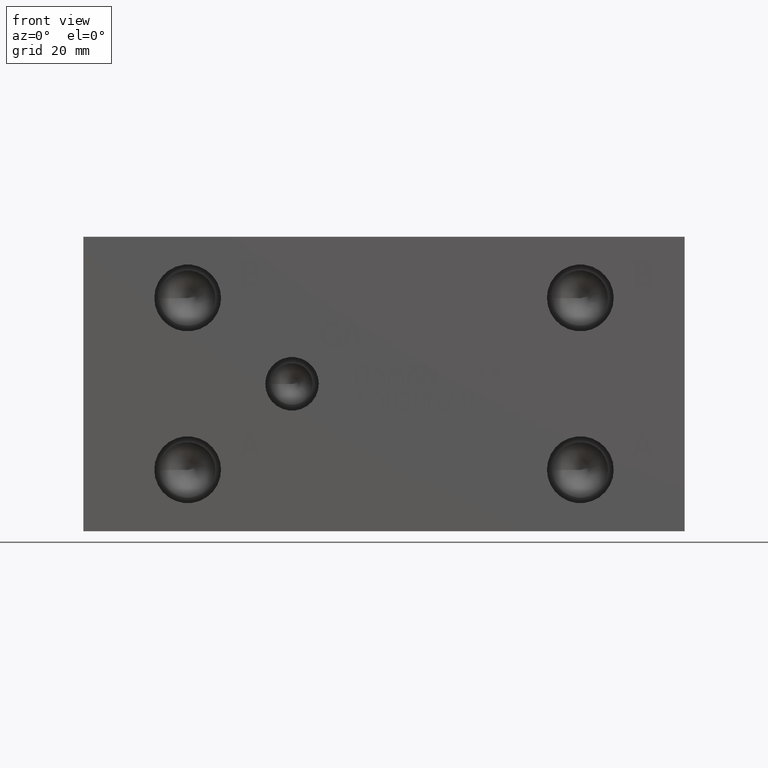
[diagram: clean part render]
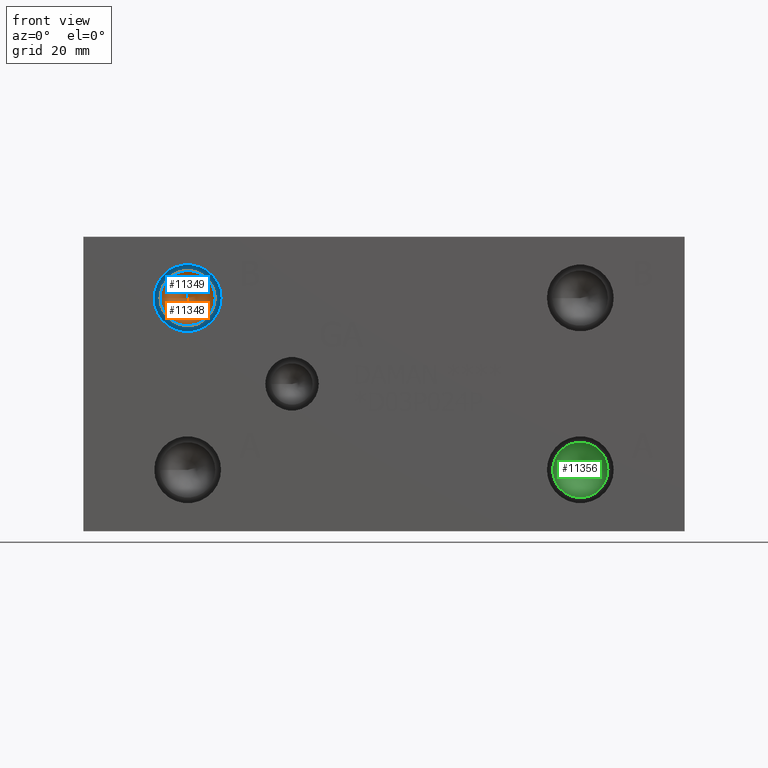
[diagram: same view with three faces highlighted in distinct colors, each labeled with its STEP entity id]
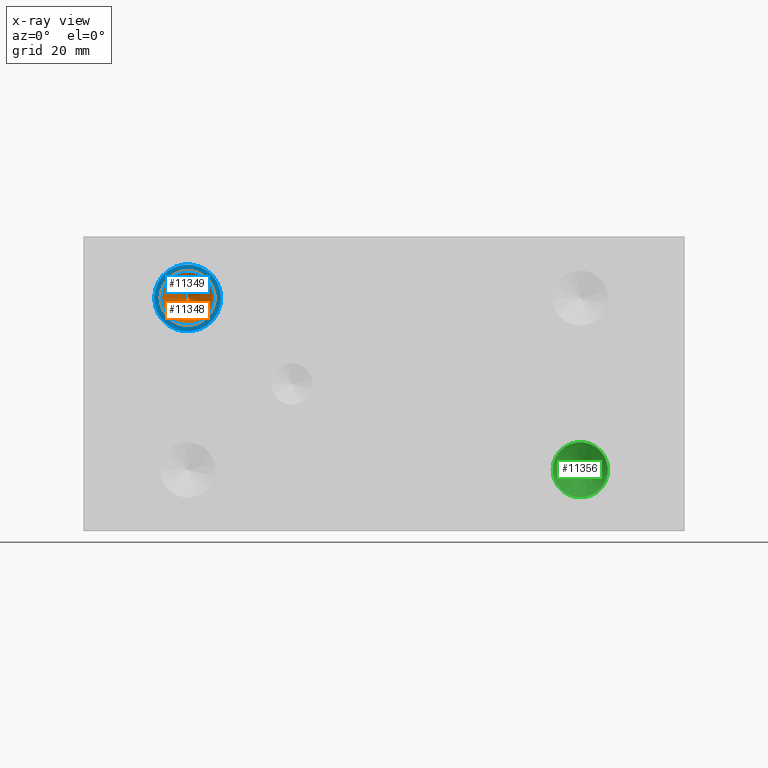
[diagram: x-ray of the same camera — body ghosted, the three highlighted faces saturated]
A machine part, front view with three faces highlighted in distinct colors.
The next image is the same camera in x-ray (body ghosted, the three faces saturated) — at least one of them is partly hidden behind the body in this view.
Their STEP definitions:

[orange] entity #11348 — the highlighted conical surface has half-angle 60 deg.
#76=CONICAL_SURFACE('',#11877,3.57505,1.0471975511966);
#173=CIRCLE('',#11878,7.1501);
#174=CIRCLE('',#11879,7.1501);
#1251=FACE_OUTER_BOUND('',#1903,.T.);
#1903=EDGE_LOOP('',(#9868,#9869,#9870,#9871));
#3035=LINE('',#19136,#4123);
#4123=VECTOR('',#13987,3.57505);
#5414=VERTEX_POINT('',#19132);
#5415=VERTEX_POINT('',#19133);
#5416=VERTEX_POINT('',#19135);
#6943=EDGE_CURVE('',#5414,#5415,#173,.T.);
#6944=EDGE_CURVE('',#5415,#5416,#3035,.T.);
#6945=EDGE_CURVE('',#5415,#5414,#174,.T.);
#9868=ORIENTED_EDGE('',*,*,#6943,.T.);
#9869=ORIENTED_EDGE('',*,*,#6944,.T.);
#9870=ORIENTED_EDGE('',*,*,#6944,.F.);
#9871=ORIENTED_EDGE('',*,*,#6945,.T.);
#11348=ADVANCED_FACE('',(#1251),#76,.F.);
#11877=AXIS2_PLACEMENT_3D('',#19131,#13983,#13984);
#11878=AXIS2_PLACEMENT_3D('',#19134,#13985,#13986);
#11879=AXIS2_PLACEMENT_3D('',#19137,#13988,#13989);
#13983=DIRECTION('center_axis',(0.,-1.,0.));
#13984=DIRECTION('ref_axis',(1.,0.,0.));
#13985=DIRECTION('center_axis',(0.,-1.,0.));
#13986=DIRECTION('ref_axis',(1.,0.,0.));
#13987=DIRECTION('',(0.866025403784439,0.5,1.06057523872491E-16));
#13988=DIRECTION('center_axis',(0.,-1.,0.));
#13989=DIRECTION('ref_axis',(1.,0.,0.));
#19131=CARTESIAN_POINT('Origin',(26.9748,14.2116660798664,60.325));
#19132=CARTESIAN_POINT('',(34.1249,12.14761,60.325));
#19133=CARTESIAN_POINT('',(19.8247,12.14761,60.325));
#19134=CARTESIAN_POINT('Origin',(26.9748,12.14761,60.325));
#19135=CARTESIAN_POINT('',(26.9748,16.2757221597327,60.325));
#19136=CARTESIAN_POINT('',(23.39975,14.2116660798664,60.325));
#19137=CARTESIAN_POINT('Origin',(26.9748,12.14761,60.325));

[blue] entity #11349 — the highlighted planar face has unit normal (0, -1, 0).
#175=CIRCLE('',#11881,8.6487);
#176=CIRCLE('',#11882,8.6487);
#177=CIRCLE('',#11883,7.1501);
#353=FACE_BOUND('',#1905,.T.);
#721=PLANE('',#11880);
#1252=FACE_OUTER_BOUND('',#1904,.T.);
#1904=EDGE_LOOP('',(#9872,#9873));
#1905=EDGE_LOOP('',(#9874));
#5417=VERTEX_POINT('',#19139);
#5418=VERTEX_POINT('',#19140);
#5419=VERTEX_POINT('',#19143);
#6946=EDGE_CURVE('',#5417,#5418,#175,.T.);
#6947=EDGE_CURVE('',#5418,#5417,#176,.T.);
#6948=EDGE_CURVE('',#5419,#5419,#177,.T.);
#9872=ORIENTED_EDGE('',*,*,#6946,.T.);
#9873=ORIENTED_EDGE('',*,*,#6947,.T.);
#9874=ORIENTED_EDGE('',*,*,#6948,.F.);
#11349=ADVANCED_FACE('',(#1252,#353),#721,.T.);
#11880=AXIS2_PLACEMENT_3D('',#19138,#13990,#13991);
#11881=AXIS2_PLACEMENT_3D('',#19141,#13992,#13993);
#11882=AXIS2_PLACEMENT_3D('',#19142,#13994,#13995);
#11883=AXIS2_PLACEMENT_3D('',#19144,#13996,#13997);
#13990=DIRECTION('center_axis',(0.,-1.,0.));
#13991=DIRECTION('ref_axis',(1.,0.,0.));
#13992=DIRECTION('center_axis',(0.,-1.,0.));
#13993=DIRECTION('ref_axis',(1.,0.,0.));
#13994=DIRECTION('center_axis',(0.,-1.,0.));
#13995=DIRECTION('ref_axis',(1.,0.,0.));
#13996=DIRECTION('center_axis',(0.,-1.,0.));
#13997=DIRECTION('ref_axis',(1.,0.,0.));
#19138=CARTESIAN_POINT('Origin',(26.9748,11.7348,60.325));
#19139=CARTESIAN_POINT('',(35.6235,11.7348,60.325));
#19140=CARTESIAN_POINT('',(18.3261,11.7348,60.325));
#19141=CARTESIAN_POINT('Origin',(26.9748,11.7348,60.325));
#19142=CARTESIAN_POINT('Origin',(26.9748,11.7348,60.325));
#19143=CARTESIAN_POINT('',(19.8247,11.7348,60.325));
#19144=CARTESIAN_POINT('Origin',(26.9748,11.7348,60.325));

[green] entity #11356 — the highlighted conical surface has half-angle 60 deg.
#78=CONICAL_SURFACE('',#11895,3.57505,1.0471975511966);
#183=CIRCLE('',#11896,7.1501);
#184=CIRCLE('',#11897,7.1501);
#1259=FACE_OUTER_BOUND('',#1913,.T.);
#1913=EDGE_LOOP('',(#9904,#9905,#9906,#9907));
#3041=LINE('',#19172,#4129);
#4129=VECTOR('',#14029,3.57505);
#5426=VERTEX_POINT('',#19168);
#5427=VERTEX_POINT('',#19169);
#5428=VERTEX_POINT('',#19171);
#6959=EDGE_CURVE('',#5426,#5427,#183,.T.);
#6960=EDGE_CURVE('',#5427,#5428,#3041,.T.);
#6961=EDGE_CURVE('',#5427,#5426,#184,.T.);
#9904=ORIENTED_EDGE('',*,*,#6959,.T.);
#9905=ORIENTED_EDGE('',*,*,#6960,.T.);
#9906=ORIENTED_EDGE('',*,*,#6960,.F.);
#9907=ORIENTED_EDGE('',*,*,#6961,.T.);
#11356=ADVANCED_FACE('',(#1259),#78,.F.);
#11895=AXIS2_PLACEMENT_3D('',#19167,#14025,#14026);
#11896=AXIS2_PLACEMENT_3D('',#19170,#14027,#14028);
#11897=AXIS2_PLACEMENT_3D('',#19173,#14030,#14031);
#14025=DIRECTION('center_axis',(0.,-1.,0.));
#14026=DIRECTION('ref_axis',(1.,0.,0.));
#14027=DIRECTION('center_axis',(0.,-1.,0.));
#14028=DIRECTION('ref_axis',(1.,0.,0.));
#14029=DIRECTION('',(0.866025403784439,0.5,1.06057523872491E-16));
#14030=DIRECTION('center_axis',(0.,-1.,0.));
#14031=DIRECTION('ref_axis',(1.,0.,0.));
#19167=CARTESIAN_POINT('Origin',(128.5748,14.2116660798664,15.875));
#19168=CARTESIAN_POINT('',(135.7249,12.14761,15.875));
#19169=CARTESIAN_POINT('',(121.4247,12.14761,15.875));
#19170=CARTESIAN_POINT('Origin',(128.5748,12.14761,15.875));
#19171=CARTESIAN_POINT('',(128.5748,16.2757221597327,15.875));
#19172=CARTESIAN_POINT('',(124.99975,14.2116660798664,15.875));
#19173=CARTESIAN_POINT('Origin',(128.5748,12.14761,15.875));